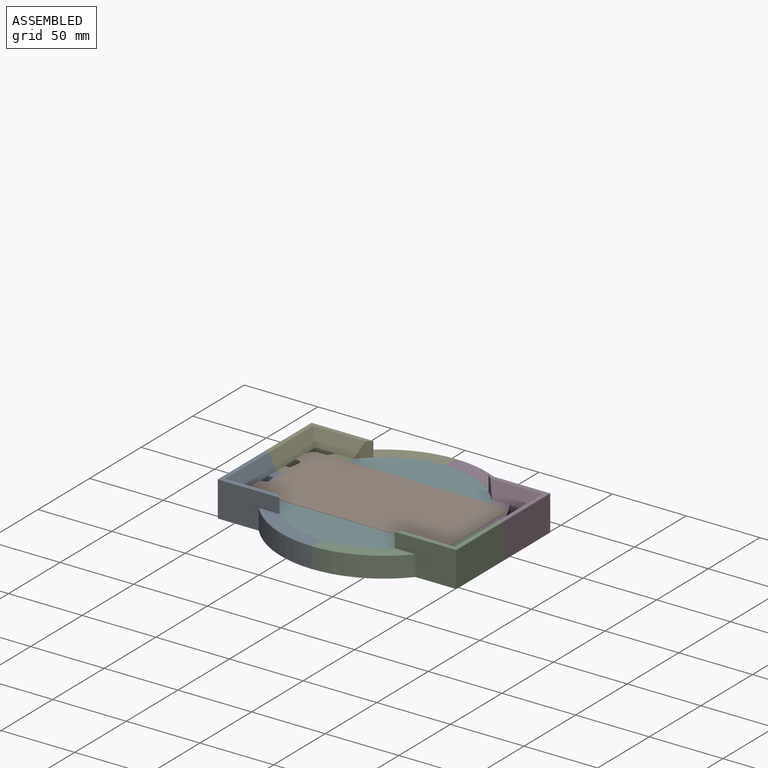
[diagram: assembled view]
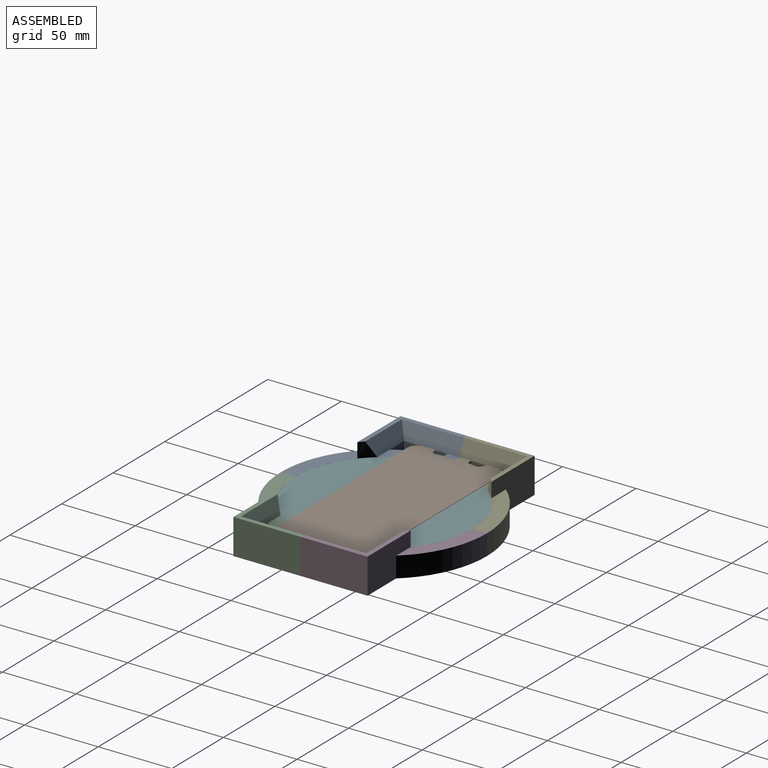
[diagram: assembled view, second angle]
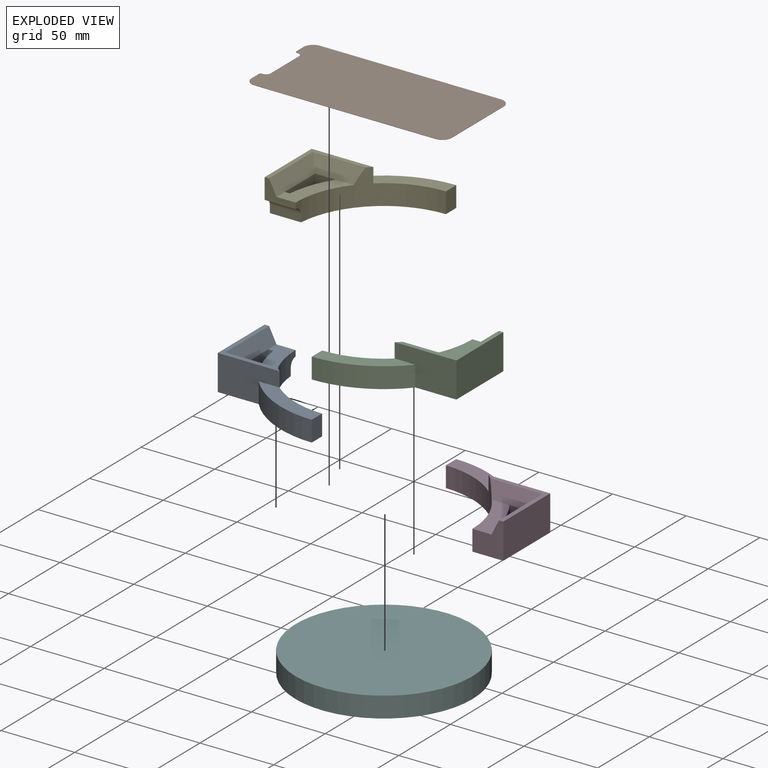
[diagram: exploded view]
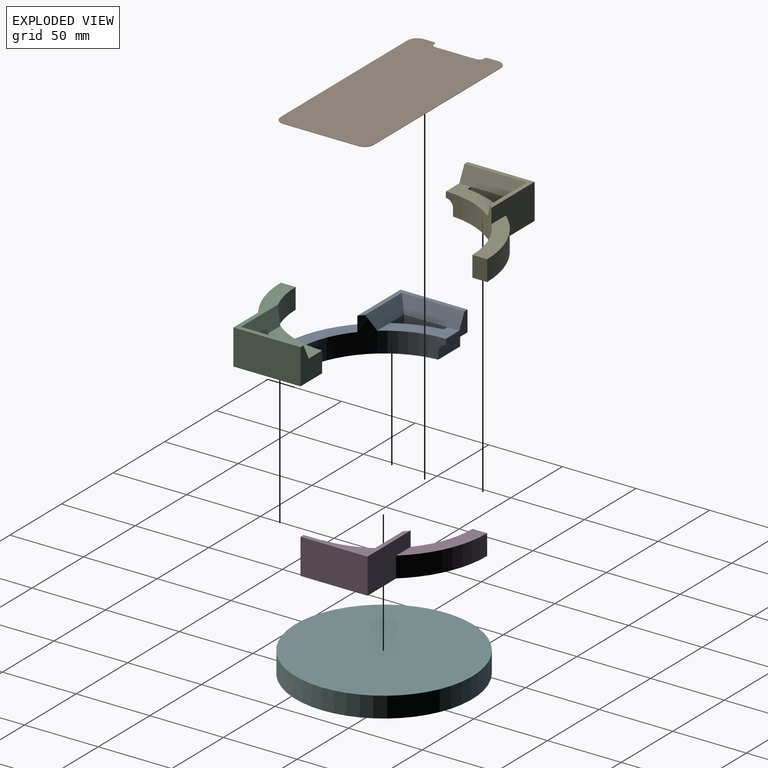
[diagram: exploded view, second angle]
ASSEMBLY  parts=6 mates=12
PART A: 18 faces, bbox 81x70x24 mm
  f0: plane 21x14mm, normal (0,1,0), area 139mm2, adj f1,f2,f5,f12,f14,f17
  f1: cylinder r=60mm len=60mm, axis (0,0,-1), area 1353.1mm2, adj f0,f4,f5,f7,f9,f11,f12,f15
  f2: plane 45.5x24mm, normal (-1,0,0), area 1047.4mm2, adj f0,f7,f11,f12,f16,f17
  f3: plane 29.5x14mm, normal (1,0,0), area 413mm2, adj f7,f10,f13,f14
  f4: plane 53.2x24.5mm, normal (0,0,1), area 516.4mm2, adj f1,f8,f9,f11
  f5: plane 37.5x26.16mm, normal (0,0,1), area 425.2mm2, adj f0,f1,f6,f13,f14,f15
  f6: cylinder r=70mm len=29.5mm, axis (0,0,-1), area 441.8mm2, adj f5,f7,f10,f13
  f7: plane 81x65mm, normal (0,0,-1), area 1438.5mm2, adj f1,f2,f3,f6,f8,f9,f10,f11
  f8: cylinder r=70mm len=53.2mm, axis (0,0,-1), area 845.9mm2, adj f4,f7,f9,f11
  f9: plane 14x10mm, normal (1,0,0), area 140mm2, adj f1,f4,f7,f8
  f10: plane 14x13.89mm, normal (0,1,0), area 194.5mm2, adj f3,f6,f7,f15
  f11: plane 41.89x24mm, normal (0,-1,0), area 808.1mm2, adj f1,f2,f4,f7,f8,f12
  f12: plane 45.5x41.89mm, normal (0,0,1), area 248.2mm2, adj f0,f1,f2,f11,f14,f15
  f13: plane 14x3.46mm, normal (0,-1,0), area 48.4mm2, adj f3,f5,f6,f7
  f14: plane 42.5x10mm, normal (0.89,0,0.45), area 447.2mm2, adj f0,f3,f5,f12,f15
  f15: plane 35.65x10mm, normal (0,0.89,0.45), area 344.6mm2, adj f1,f5,f10,f12,f14
  f16: plane 21.21x5mm, normal (0,1,0), area 106mm2, adj f1,f2,f7,f17
  f17: cylinder r=5mm len=21.21mm, axis (-1,0,0), area 165.8mm2, adj f0,f1,f2,f16
PART B: 18 faces, bbox 63.3x0.2x136 mm
  f0: cylinder r=6.58mm len=6.58mm, axis (0,-1,0), area 2.3mm2, adj f1,f15,f16,f17
  f1: plane 122.8x0.23mm, normal (1,0,0), area 27.9mm2, adj f0,f2,f16,f17
  f2: cylinder r=6.58mm len=6.58mm, axis (0,-1,0), area 2.3mm2, adj f1,f3,f16,f17
  f3: plane 50.16x0.23mm, normal (0,0,-1), area 11.4mm2, adj f2,f4,f16,f17
  f4: cylinder r=6.58mm len=6.58mm, axis (0,-1,0), area 2.3mm2, adj f3,f5,f16,f17
  f5: plane 122.8x0.23mm, normal (-1,0,0), area 27.9mm2, adj f4,f6,f16,f17
  f6: cylinder r=6.58mm len=6.58mm, axis (0,-1,0), area 2.3mm2, adj f5,f7,f16,f17
  f7: plane 6.77x0.23mm, normal (0,0,1), area 1.5mm2, adj f6,f8,f16,f17
  f8: cylinder r=1.41mm len=1.41mm, axis (0,-1,0), area 0.5mm2, adj f7,f9,f16,f17
  f9: plane 0.37x0.23mm, normal (1,0,0), area 0.1mm2, adj f8,f10,f16,f17
  f10: cylinder r=3.21mm len=3.21mm, axis (0,1,0), area 1.1mm2, adj f9,f11,f16,f17
  f11: plane 27.38x0.23mm, normal (0,0,1), area 6.2mm2, adj f10,f12,f16,f17
  f12: cylinder r=3.21mm len=3.21mm, axis (0,1,0), area 1.1mm2, adj f11,f13,f16,f17
  f13: plane 0.37x0.23mm, normal (-1,0,0), area 0.1mm2, adj f12,f14,f16,f17
  f14: cylinder r=1.41mm len=1.41mm, axis (0,-1,0), area 0.5mm2, adj f13,f15,f16,f17
  f15: plane 6.77x0.23mm, normal (0,0,1), area 1.5mm2, adj f0,f14,f16,f17
  f16: plane 135.96x63.32mm, normal (0,-1,0), area 8406.7mm2, adj f0,f1,f2,f3,f4,f5,f6,f7
  f17: plane 135.96x63.32mm, normal (0,1,0), area 8406.7mm2, adj f0,f1,f2,f3,f4,f5,f6,f7
PART C: 16 faces, bbox 81x70x24 mm
  f0: plane 29.5x14mm, normal (-1,0,0), area 413mm2, adj f5,f9,f13,f14
  f1: plane 53.2x24.5mm, normal (0,0,1), area 516.4mm2, adj f4,f6,f8,f10
  f2: plane 37.5x26.16mm, normal (0,0,1), area 425.2mm2, adj f3,f4,f7,f13,f14,f15
  f3: cylinder r=70mm len=29.5mm, axis (0,0,-1), area 441.8mm2, adj f2,f5,f9,f13
  f4: cylinder r=60mm len=60mm, axis (0,0,-1), area 1397.8mm2, adj f1,f2,f5,f7,f8,f10,f12,f15
  f5: plane 81x70mm, normal (0,0,-1), area 1543.9mm2, adj f0,f3,f4,f6,f7,f8,f9,f10
  f6: cylinder r=70mm len=53.2mm, axis (0,0,-1), area 845.9mm2, adj f1,f5,f8,f10
  f7: plane 24x21mm, normal (0,1,0), area 349mm2, adj f2,f4,f5,f11,f12,f14
  f8: plane 14x10mm, normal (-1,0,0), area 140mm2, adj f1,f4,f5,f6
  f9: plane 14x13.89mm, normal (0,1,0), area 194.5mm2, adj f0,f3,f5,f15
  f10: plane 41.89x24mm, normal (0,-1,0), area 808.1mm2, adj f1,f4,f5,f6,f11,f12
  f11: plane 45.5x24mm, normal (1,0,0), area 1092mm2, adj f5,f7,f10,f12
  f12: plane 45.5x41.89mm, normal (0,0,1), area 248.2mm2, adj f4,f7,f10,f11,f14,f15
  f13: plane 14x3.46mm, normal (0,-1,0), area 48.4mm2, adj f0,f2,f3,f5
  f14: plane 42.5x10mm, normal (-0.89,0,0.45), area 447.2mm2, adj f0,f2,f7,f12,f15
  f15: plane 35.65x10mm, normal (0,0.89,0.45), area 344.6mm2, adj f2,f4,f9,f12,f14
PART D: 16 faces, bbox 81x70x24 mm
  f0: plane 29.5x14mm, normal (-1,0,0), area 413mm2, adj f5,f9,f13,f14
  f1: plane 53.2x24.5mm, normal (0,0,1), area 516.4mm2, adj f4,f6,f8,f10
  f2: plane 37.5x26.16mm, normal (0,0,1), area 425.2mm2, adj f3,f4,f7,f13,f14,f15
  f3: cylinder r=70mm len=29.5mm, axis (0,0,-1), area 441.8mm2, adj f2,f5,f9,f13
  f4: cylinder r=60mm len=60mm, axis (0,0,-1), area 1397.8mm2, adj f1,f2,f5,f7,f8,f10,f12,f15
  f5: plane 81x70mm, normal (0,0,-1), area 1543.9mm2, adj f0,f3,f4,f6,f7,f8,f9,f10
  f6: cylinder r=70mm len=53.2mm, axis (0,0,-1), area 845.9mm2, adj f1,f5,f8,f10
  f7: plane 24x21mm, normal (0,-1,0), area 349mm2, adj f2,f4,f5,f11,f12,f14
  f8: plane 14x10mm, normal (-1,0,0), area 140mm2, adj f1,f4,f5,f6
  f9: plane 14x13.89mm, normal (0,-1,0), area 194.5mm2, adj f0,f3,f5,f15
  f10: plane 41.89x24mm, normal (0,1,0), area 808.1mm2, adj f1,f4,f5,f6,f11,f12
  f11: plane 45.5x24mm, normal (1,0,0), area 1092mm2, adj f5,f7,f10,f12
  f12: plane 45.5x41.89mm, normal (0,0,1), area 248.2mm2, adj f4,f7,f10,f11,f14,f15
  f13: plane 14x3.46mm, normal (0,1,0), area 48.4mm2, adj f0,f2,f3,f5
  f14: plane 42.5x10mm, normal (-0.89,0,0.45), area 447.2mm2, adj f0,f2,f7,f12,f15
  f15: plane 35.65x10mm, normal (0,-0.89,0.45), area 344.6mm2, adj f2,f4,f9,f12,f14
PART E: 18 faces, bbox 81x70x24 mm
  f0: plane 21x14mm, normal (0,-1,0), area 139mm2, adj f1,f2,f5,f12,f14,f17
  f1: cylinder r=60mm len=60mm, axis (0,0,-1), area 1353.1mm2, adj f0,f4,f5,f7,f9,f11,f12,f15
  f2: plane 45.5x24mm, normal (-1,0,0), area 1047.4mm2, adj f0,f7,f11,f12,f16,f17
  f3: plane 29.5x14mm, normal (1,0,0), area 413mm2, adj f7,f10,f13,f14
  f4: plane 53.2x24.5mm, normal (0,0,1), area 516.4mm2, adj f1,f8,f9,f11
  f5: plane 37.5x26.16mm, normal (0,0,1), area 425.2mm2, adj f0,f1,f6,f13,f14,f15
  f6: cylinder r=70mm len=29.5mm, axis (0,0,-1), area 441.8mm2, adj f5,f7,f10,f13
  f7: plane 81x65mm, normal (0,0,-1), area 1438.5mm2, adj f1,f2,f3,f6,f8,f9,f10,f11
  f8: cylinder r=70mm len=53.2mm, axis (0,0,-1), area 845.9mm2, adj f4,f7,f9,f11
  f9: plane 14x10mm, normal (1,0,0), area 140mm2, adj f1,f4,f7,f8
  f10: plane 14x13.89mm, normal (0,-1,0), area 194.5mm2, adj f3,f6,f7,f15
  f11: plane 41.89x24mm, normal (0,1,0), area 808.1mm2, adj f1,f2,f4,f7,f8,f12
  f12: plane 45.5x41.89mm, normal (0,0,1), area 248.2mm2, adj f0,f1,f2,f11,f14,f15
  f13: plane 14x3.46mm, normal (0,1,0), area 48.4mm2, adj f3,f5,f6,f7
  f14: plane 42.5x10mm, normal (0.89,0,0.45), area 447.2mm2, adj f0,f3,f5,f12,f15
  f15: plane 35.65x10mm, normal (0,-0.89,0.45), area 344.6mm2, adj f1,f5,f10,f12,f14
  f16: plane 21.21x5mm, normal (0,-1,0), area 106mm2, adj f1,f2,f7,f17
  f17: cylinder r=5mm len=21.21mm, axis (-1,0,0), area 165.8mm2, adj f0,f1,f2,f16
PART F: 3 faces, bbox 120x120x14 mm
  f0: cylinder r=60mm len=120mm, axis (0,0,-1), area 5277.9mm2, adj f1,f2
  f1: plane 120x120mm, normal (0,0,1), area 11309.7mm2, adj f0
  f2: plane 120x120mm, normal (0,0,-1), area 11309.7mm2, adj f0
PLACE A t=(-15.02,-121.5,54.04)mm
PLACE B rot(axis=(0.58,-0.58,-0.58),120deg) t=(47.61,-120.44,60.72)mm
PLACE C t=(-15.02,-121.5,54.04)mm
PLACE D t=(-15.02,-121.5,54.04)mm
PLACE E t=(-15.02,-121.5,54.04)mm
PLACE F t=(-15.02,-121.5,54.04)mm
MATE cylindrical E.f1 <-> F.f0  axis (0,0,-1) through (-15.02,-121.5,66.04)mm
MATE planar D.f8 <-> E.f9  axis (-1,0,0) through (-15.02,-56.5,61.04)mm
MATE planar B.f7 <-> E.f3  axis (-1,0,0) through (-88.02,-98.75,68.15)mm
MATE planar F.f0 <-> E.f7  axis (0,0,-1) through (-15.02,-121.5,54.04)mm
MATE planar E.f0 <-> A.f0  axis (0,-1,0) through (-90.52,-121.5,73.04)mm
MATE planar F.f0 <-> A.f7  axis (0,0,-1) through (-15.02,-121.5,54.04)mm
MATE cylindrical F.f0 <-> C.f3  axis (0,0,-1) through (-15.02,-121.5,61.04)mm
MATE planar B.f16 <-> F.f0  axis (0,0,-1) through (-18.75,-120.44,68.04)mm
MATE planar C.f1 <-> A.f4  axis (0,0,1) through (9.69,-180.04,68.04)mm
MATE cylindrical F.f0 <-> D.f3  axis (0,0,-1) through (-15.02,-121.5,61.04)mm
MATE planar A.f2 <-> E.f2  axis (-1,0,0) through (-96.02,-145.12,66.36)mm
MATE planar F.f0 <-> D.f5  axis (0,0,-1) through (-15.02,-121.5,54.04)mm
